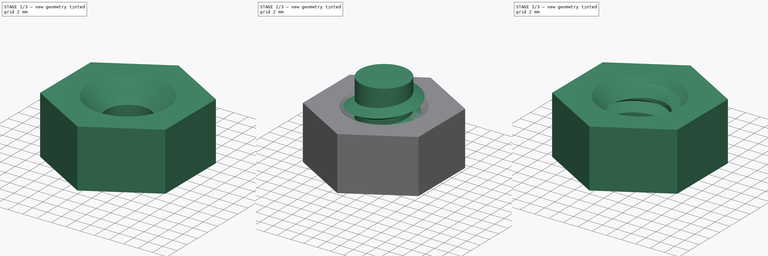
[diagram: build sequence overview — one tinted view per stage of 3, left to right]
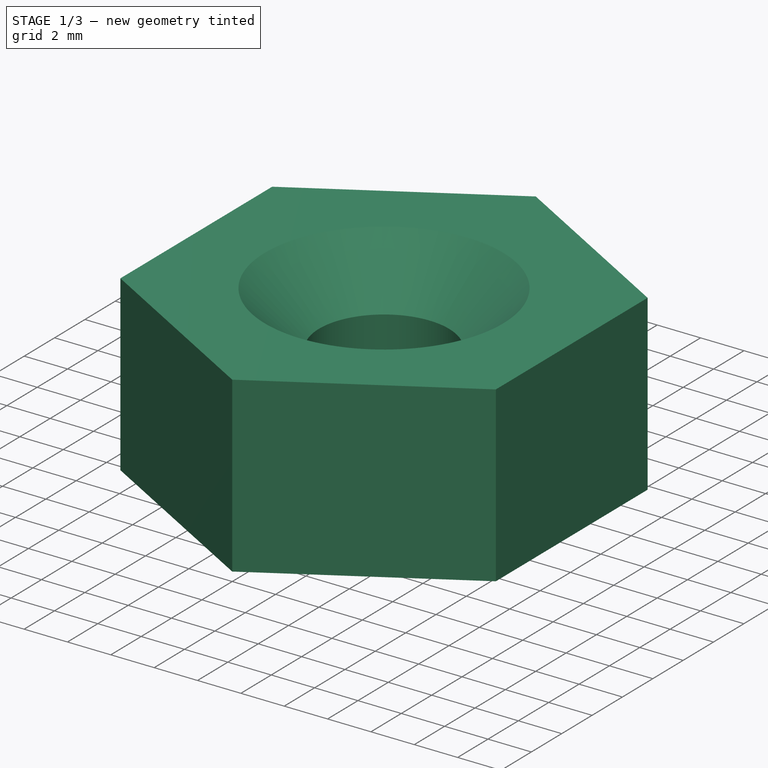
[diagram: stage 1 of 3 — iso view after this stage's code; geometry added in this stage tinted green]
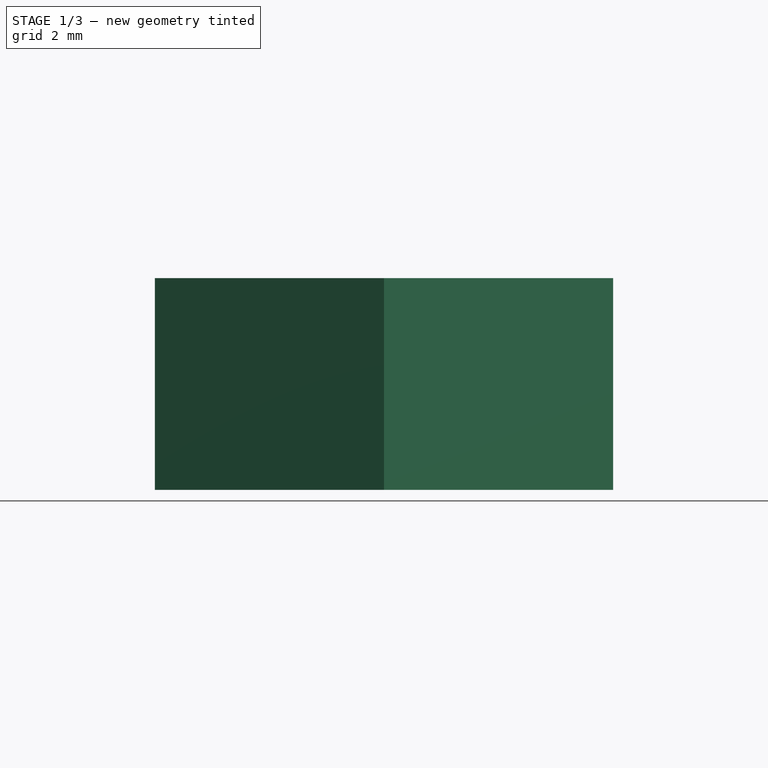
[diagram: stage 1 of 3 — front view after this stage's code; geometry added in this stage tinted green]
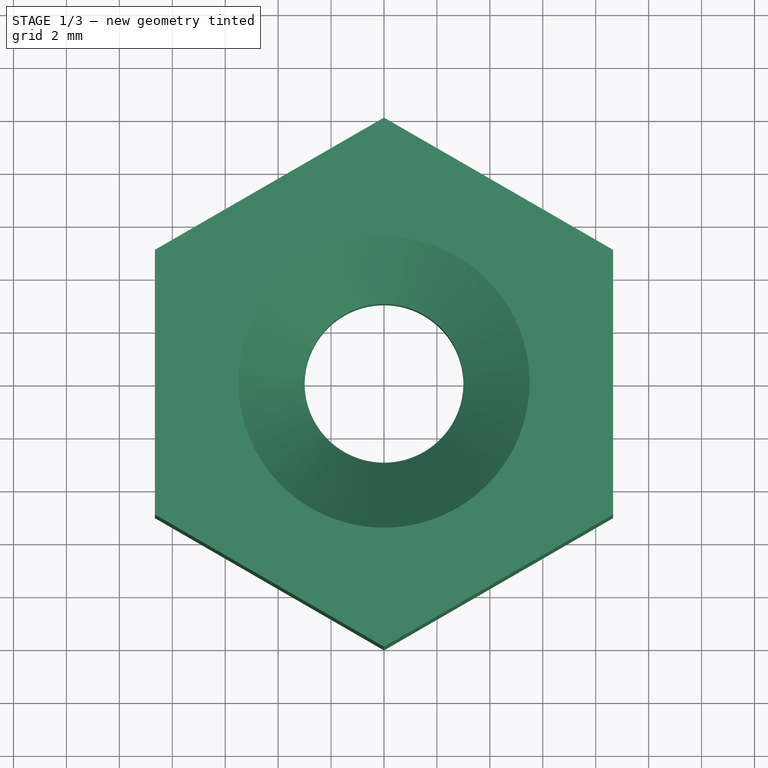
[diagram: stage 1 of 3 — top view after this stage's code; geometry added in this stage tinted green]
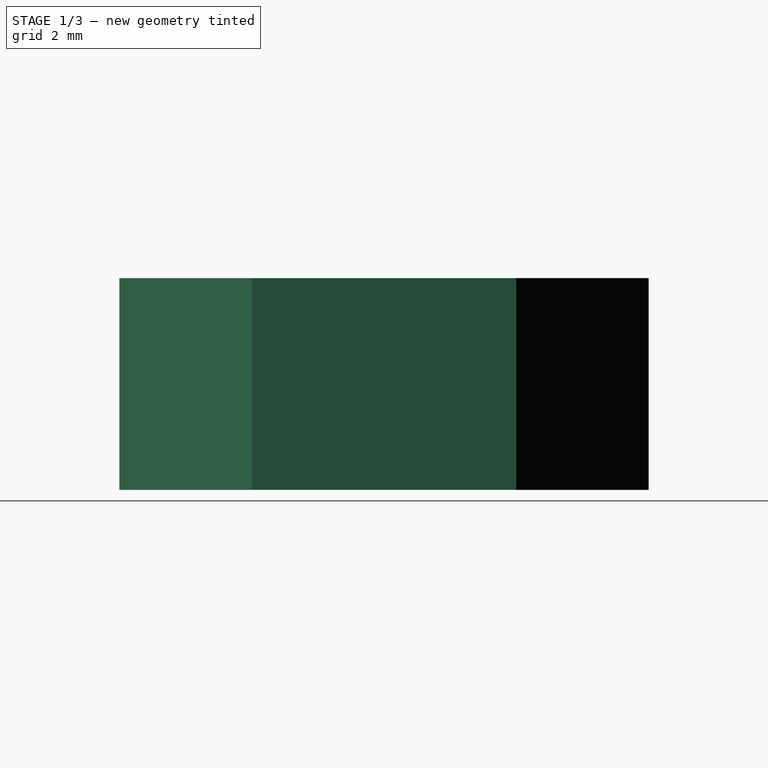
[diagram: stage 1 of 3 — right view after this stage's code; geometry added in this stage tinted green]
FCSTD DOCUMENT  (FreeCAD 0.14R3703 (Git))
Label: rod-nut
License: CC-BY 3.0
LicenseURL: http://creativecommons.org/licenses/by/3.0/
objects: Sketcher::SketchObject×2, PartDesign::Pad×1, Part::Helix×1, Part::Sweep×1, Part::Cylinder×1, Part::MultiFuse×1, PartDesign::Chamfer×1, Part::Cut×1, Part::Feature×1
note: 11 computed .brp shape members not serialized (recipe doc carries the construction recipe); baked Part::Feature solids carry a one-line shape summary decoded from their .brp

FEATURE [Sketcher::SketchObject] Sketch  label="Nut Sketch"
  sketch-geometry (7):
    g0: LineSegment StartX=-8.66025 StartY=5 StartZ=0 EndX=-8.66025 EndY=-5 EndZ=0
    g1: LineSegment StartX=-8.66025 StartY=-5 StartZ=0 EndX=0 EndY=-10 EndZ=0
    g2: LineSegment StartX=0 StartY=-10 StartZ=0 EndX=8.66025 EndY=-5 EndZ=0
    g3: LineSegment StartX=8.66025 StartY=-5 StartZ=0 EndX=8.66025 EndY=5 EndZ=0
    g4: LineSegment StartX=8.66025 StartY=5 StartZ=0 EndX=0 EndY=10 EndZ=0
    g5: LineSegment StartX=0 StartY=10 StartZ=0 EndX=-8.66025 EndY=5 EndZ=0
    g6: Circle CenterX=0 CenterY=0 CenterZ=0 NormalX=0 NormalY=0 NormalZ=1 Radius=3
  constraints (20):
    c: Coincident(g0,g1)
    c: PointOnObject(g1,g-2)
    c: Coincident(g1,g2)
    c: Coincident(g2,g3)
    c: Vertical(g3)
    c: Coincident(g3,g4)
    c: PointOnObject(g4,g-2)
    c: Coincident(g4,g5)
    c: Coincident(g5,g0)
    c: Equal(g5,g0)
    c: Equal(g0,g1)
    c: Equal(g1,g2)
    c: Equal(g2,g3)
    c: Equal(g3,g4)
    c: Vertical(g0)
    c: Distance(g0) = 10
    c: Angle(g5,g4) = 2.0944
    c: Symmetric(g3,g2,g-1)
    c: Coincident(g6,g-1)
    c: Radius(g6) = 3
FEATURE [PartDesign::Pad] Pad
  Length = 8
  Length2 = 100
  Sketch = -> Sketch
  Type = 0
FEATURE [PartDesign::Chamfer] Chamfer
  Base = -> Pad [Edge21,Edge20]
  Size = 2.5
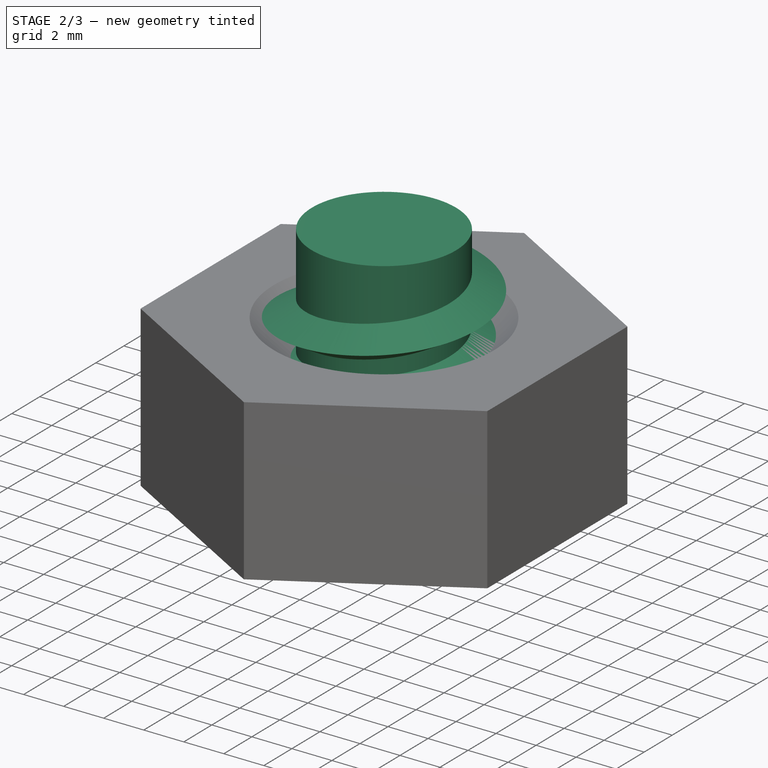
[diagram: stage 2 of 3 — iso view after this stage's code; geometry added in this stage tinted green]
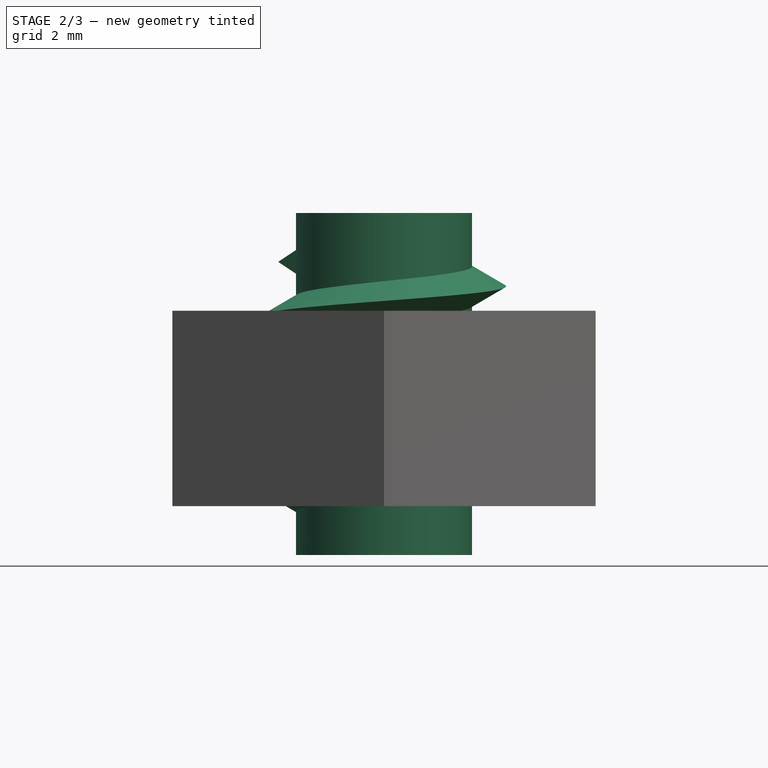
[diagram: stage 2 of 3 — front view after this stage's code; geometry added in this stage tinted green]
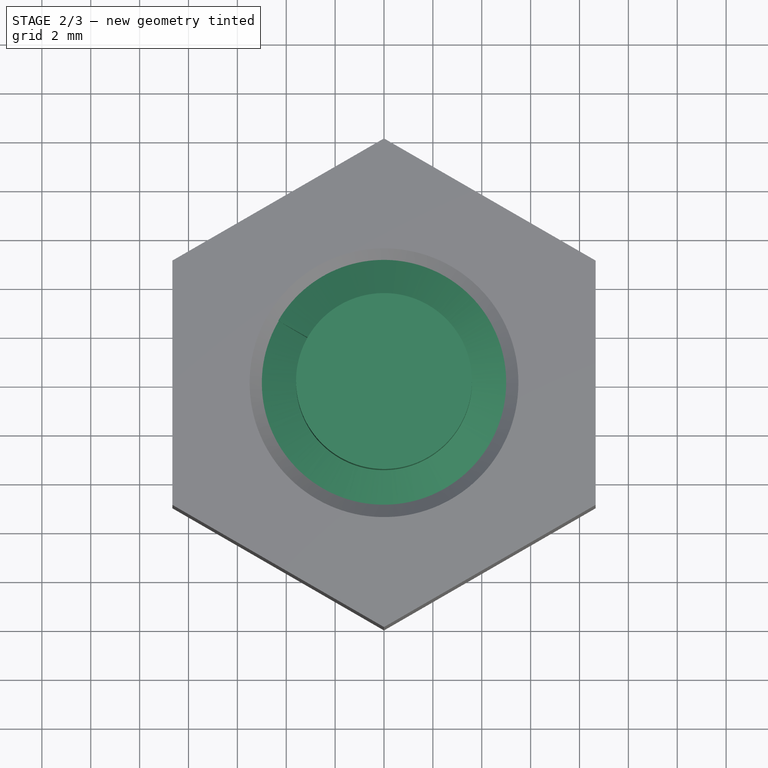
[diagram: stage 2 of 3 — top view after this stage's code; geometry added in this stage tinted green]
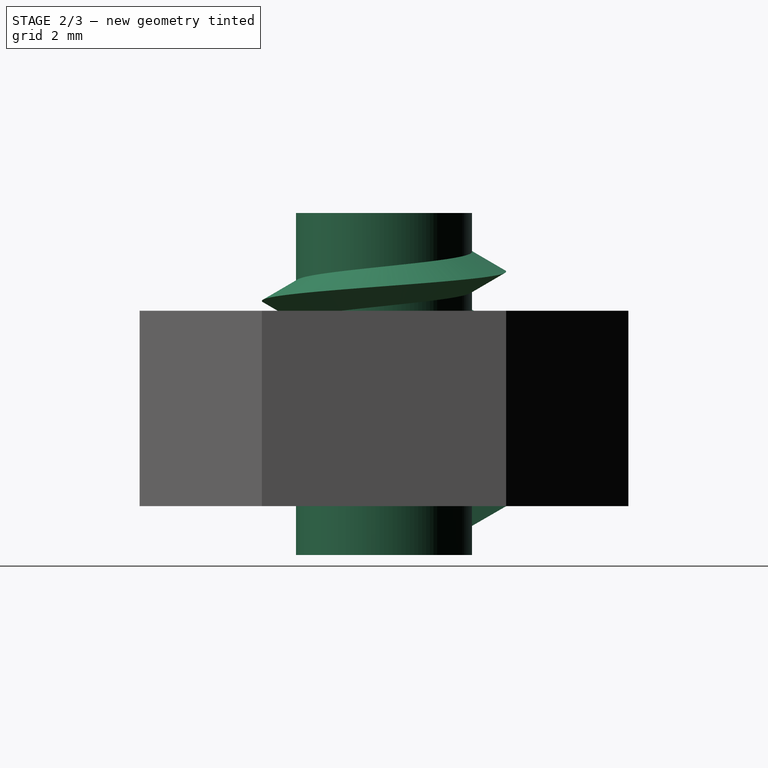
[diagram: stage 2 of 3 — right view after this stage's code; geometry added in this stage tinted green]
FEATURE [Part::Helix] Helix
  Angle = 0
  Height = 10
  LocalCoord = 0
  Pitch = 2.4
  Placement = pos=(0,0,0) rot=(0,0,1;1.5708rad)
  Radius = 5
  Style = 1
FEATURE [Sketcher::SketchObject] Sketch001  label="Sketch"
  Placement = pos=(0,0,0) rot=(0.57735,0.57735,0.57735;2.0944rad)
  sketch-geometry (3):
    g0: LineSegment StartX=3.5 StartY=0.866025 StartZ=0 EndX=3.5 EndY=-0.866025 EndZ=0
    g1: LineSegment StartX=3.5 StartY=-0.866025 StartZ=0 EndX=5 EndY=0 EndZ=0
    g2: LineSegment StartX=5 StartY=0 StartZ=0 EndX=3.5 EndY=0.866025 EndZ=0
  constraints (9):
    c: Vertical(g0)
    c: Coincident(g0,g1)
    c: PointOnObject(g1,g-1)
    c: Coincident(g1,g2)
    c: Coincident(g2,g0)
    c: Equal(g1,g2)
    c: Angle(g2,g1) = 1.0472
    c: DistanceX(g-1,g0) = 3.5
    c: DistanceX(g-1,g1) = 5
FEATURE [Part::Sweep] Sweep
  Frenet = true
  Sections = -> [Sketch001]
  Solid = true
  Spine = -> Helix [Edge1]
  Transition = 1
FEATURE [Part::Cylinder] Cylinder
  Angle = 360
  Height = 14
  Placement = pos=(0,0,-2) rot=(0,0,1;0rad)
  Radius = 3.6
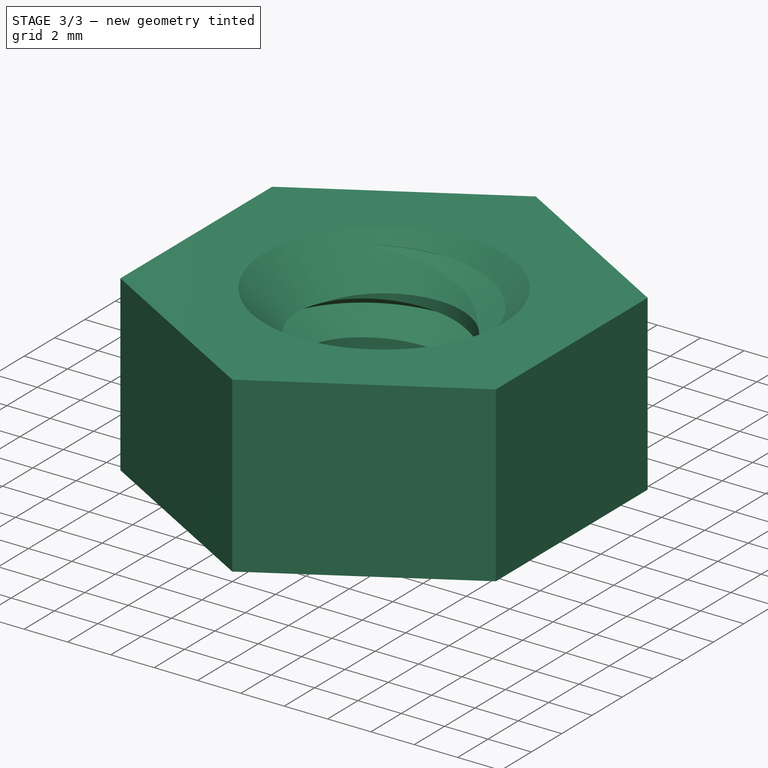
[diagram: stage 3 of 3 — iso view after this stage's code; geometry added in this stage tinted green]
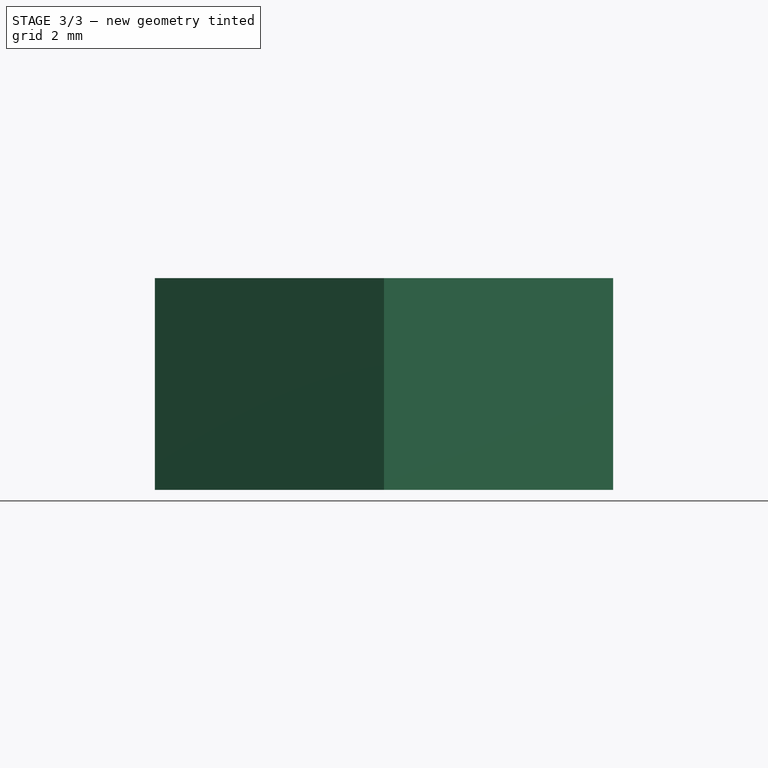
[diagram: stage 3 of 3 — front view after this stage's code; geometry added in this stage tinted green]
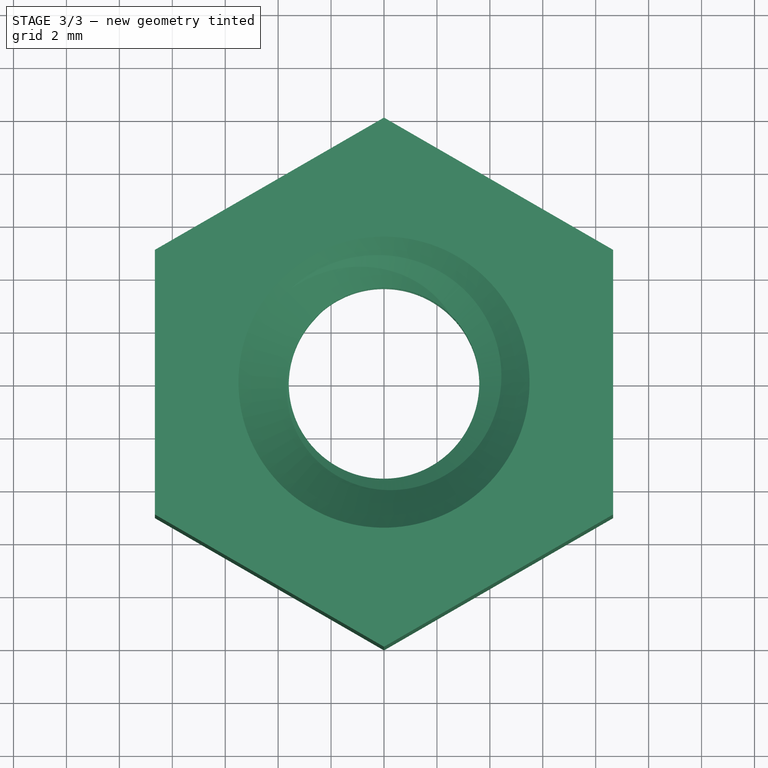
[diagram: stage 3 of 3 — top view after this stage's code; geometry added in this stage tinted green]
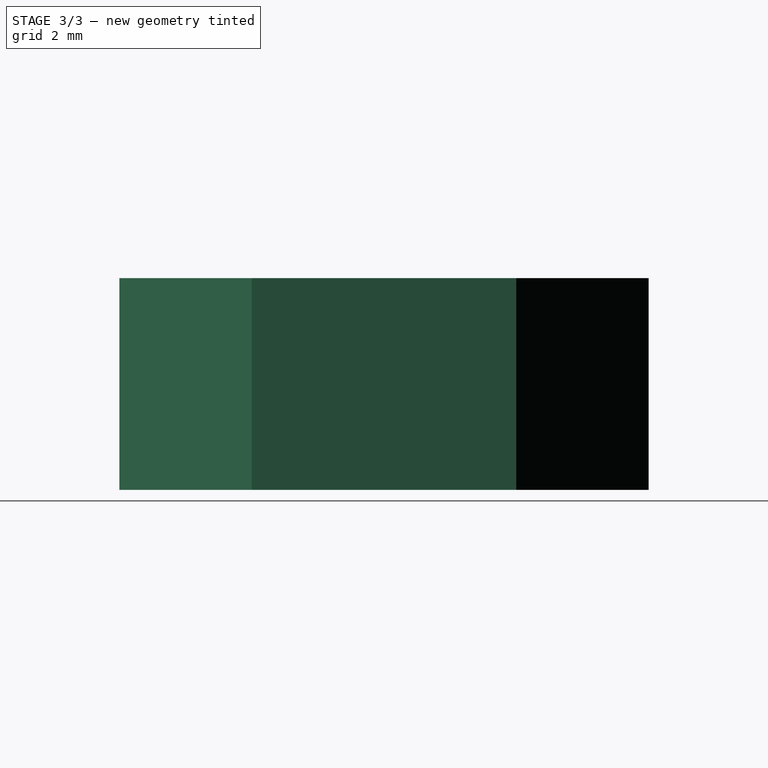
[diagram: stage 3 of 3 — right view after this stage's code; geometry added in this stage tinted green]
FEATURE [Part::MultiFuse] Fusion
  Shapes = -> [Cylinder,Sweep]
FEATURE [Part::Cut] Cut
  Base = -> Chamfer
  Tool = -> Fusion
FEATURE [Part::Feature] Cut001  label="Rod Nut"
  shape: bbox 17.32 x 20 x 11.73 mm, 15 faces (baked)
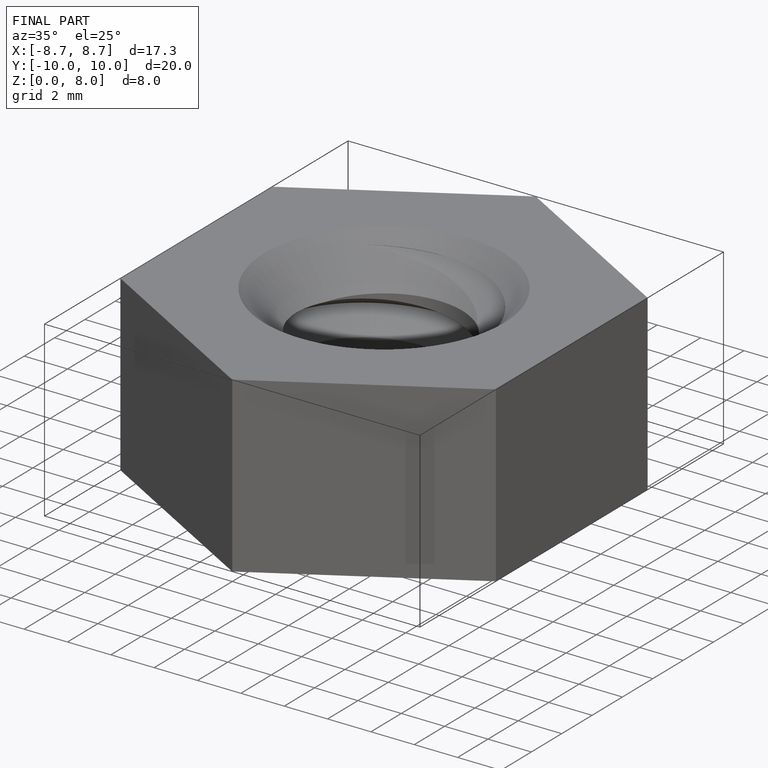
[diagram: finished part — iso view with bounding-box wireframe]
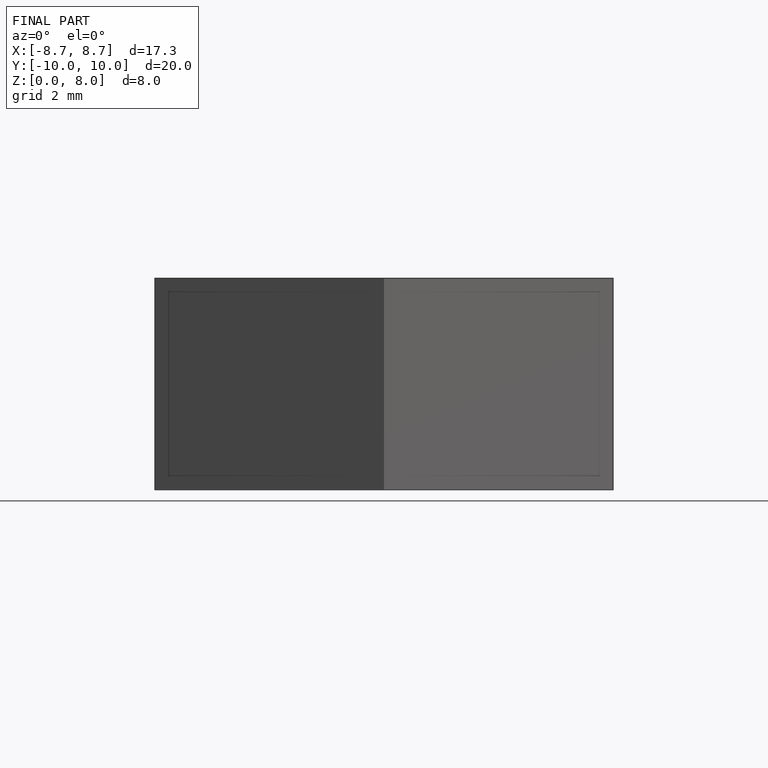
[diagram: finished part — front view with bounding-box wireframe]
